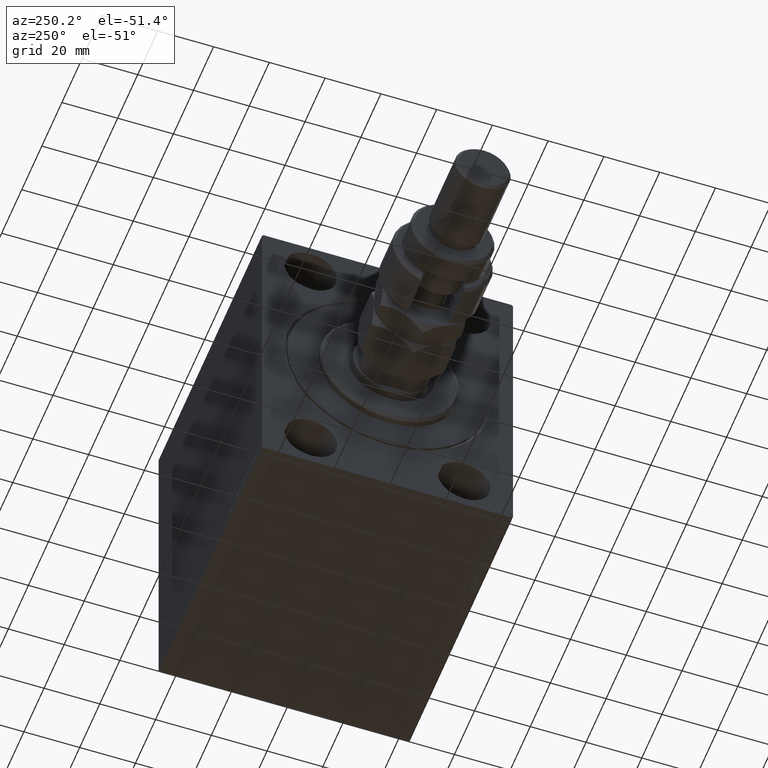
[diagram: clean part render]
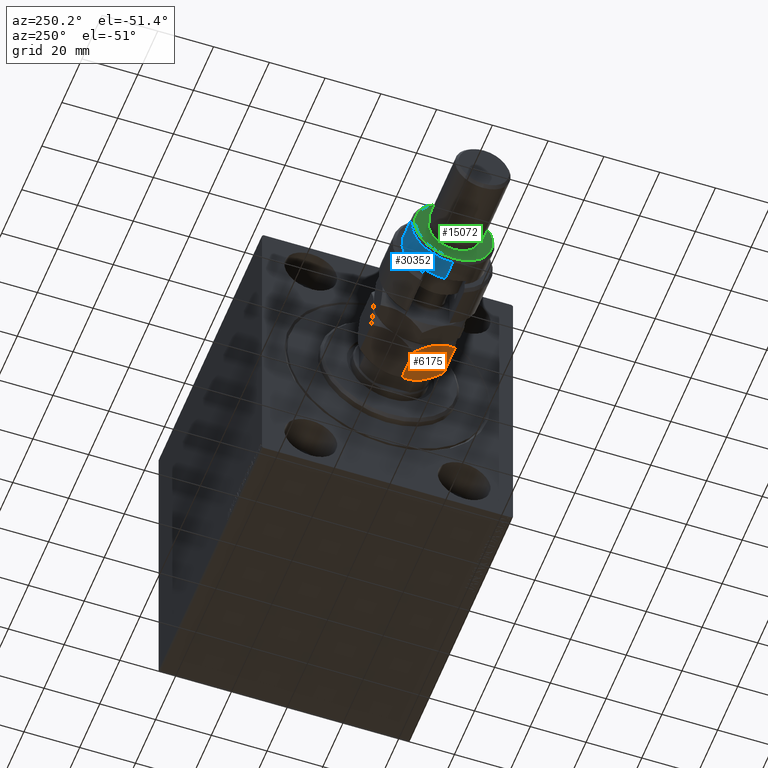
[diagram: same view with three faces highlighted in distinct colors, each labeled with its STEP entity id]
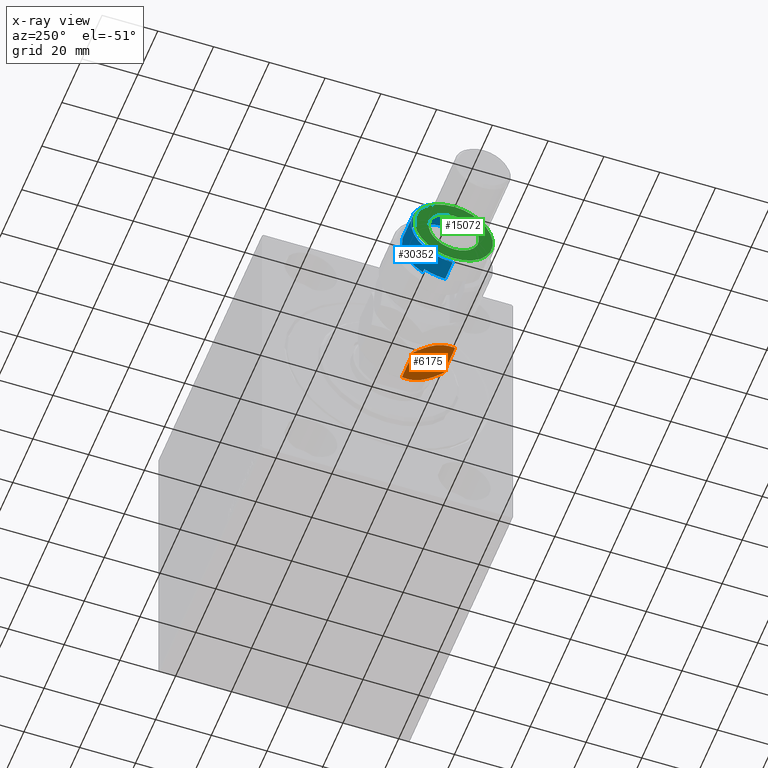
[diagram: x-ray of the same camera — body ghosted, the three highlighted faces saturated]
A machine part, auxiliary view with three faces highlighted in distinct colors.
The next image is the same camera in x-ray (body ghosted, the three faces saturated) — at least one of them is partly hidden behind the body in this view.
Their STEP definitions:

[orange] entity #6175 — the highlighted planar face has unit normal (0, 0.5, 0.866).
#936 = CARTESIAN_POINT ( 'NONE',  ( -2.383929548160354628, -15.94414570932928576, 14.93952096862912526 ) ) ;
#1970 = CARTESIAN_POINT ( 'NONE',  ( -14.99999999999999645, -8.660254037844389075, 2.320508075688762606 ) ) ;
#2292 = CARTESIAN_POINT ( 'NONE',  ( -14.99999999999999645, -8.660254037844389075, 2.320508075688762606 ) ) ;
#3951 = ORIENTED_EDGE ( 'NONE', *, *, #15473, .F. ) ;
#4167 = AXIS2_PLACEMENT_3D ( 'NONE', #21408, #33797, #12359 ) ;
#4850 = CARTESIAN_POINT ( 'NONE',  ( -3.416099238086855886E-15, -17.32050807568877104, 13.67949192431124317 ) ) ;
#5490 = CARTESIAN_POINT ( 'NONE',  ( -14.99999999999999645, -8.660254037844389075, 13.67949192431124139 ) ) ;
#6175 = ADVANCED_FACE ( 'NONE', ( #12126 ), #26495, .F. ) ;
#6575 = LINE ( 'NONE', #23762, #32902 ) ;
#7499 = B_SPLINE_CURVE_WITH_KNOTS ( 'NONE', 3,
 ( #26156, #36768, #33222, #936, #41038, #11785 ),
 .UNSPECIFIED., .F., .F.,
 ( 4, 2, 4 ),
 ( 0.008977392552884447263, 0.01343452311421656359, 0.01789165367554867991 ),
 .UNSPECIFIED. ) ;
#8515 = VERTEX_POINT ( 'NONE', #46137 ) ;
#8827 = EDGE_CURVE ( 'NONE', #45912, #42480, #9542, .T. ) ;
#8900 = CARTESIAN_POINT ( 'NONE',  ( -4.247772349543487813, -14.86805556622358893, 0.4475714085130264031 ) ) ;
#9217 = ORIENTED_EDGE ( 'NONE', *, *, #8827, .F. ) ;
#9278 = CARTESIAN_POINT ( 'NONE',  ( -8.804550678576912759, -12.23719837131869248, -4.878909776184767981E-16 ) ) ;
#9353 = CARTESIAN_POINT ( 'NONE',  ( -2.378834511187505996, -15.94708733029708725, 1.064486067744005560 ) ) ;
#9512 = CARTESIAN_POINT ( 'NONE',  ( -13.82525345580783060, -9.338494271363318333, 1.642267842169780279 ) ) ;
#9542 = B_SPLINE_CURVE_WITH_KNOTS ( 'NONE', 3,
 ( #38038, #9278, #12814, #34963, #9512, #1970 ),
 .UNSPECIFIED., .F., .F.,
 ( 4, 2, 4 ),
 ( 0.008977392552884445528, 0.01343452311421656012, 0.01789165367554867297 ),
 .UNSPECIFIED. ) ;
#10558 = CARTESIAN_POINT ( 'NONE',  ( -3.035766082959412415E-15, -17.32050807568877104, 16.00000000000000000 ) ) ;
#10852 = EDGE_CURVE ( 'NONE', #38655, #42480, #6575, .T. ) ;
#11785 = CARTESIAN_POINT ( 'NONE',  ( -3.416099238086855886E-15, -17.32050807568877104, 13.67949192431124317 ) ) ;
#11899 = CARTESIAN_POINT ( 'NONE',  ( -14.99999999999999645, -8.660254037844389075, 13.67949192431124139 ) ) ;
#12126 = FACE_OUTER_BOUND ( 'NONE', #33117, .T. ) ;
#12335 = CARTESIAN_POINT ( 'NONE',  ( -7.500000000000001776, -12.99038105676658361, 16.00000000000000000 ) ) ;
#12359 = DIRECTION ( 'NONE',  ( -0.8660254037844385966, 0.4999999999999999445, 0.000000000000000000 ) ) ;
#12814 = CARTESIAN_POINT ( 'NONE',  ( -10.08691881950258740, -11.49682277995505331, 0.2303299219392165864 ) ) ;
#15473 = EDGE_CURVE ( 'NONE', #38655, #8515, #45447, .T. ) ;
#15957 = CARTESIAN_POINT ( 'NONE',  ( -6.176419610670697224, -13.75455055083996214, 0.05953537397470286957 ) ) ;
#17048 = ORIENTED_EDGE ( 'NONE', *, *, #23490, .F. ) ;
#17108 = CARTESIAN_POINT ( 'NONE',  ( -7.500000000000000000, -12.99038105676658006, 0.000000000000000000 ) ) ;
#18106 = ORIENTED_EDGE ( 'NONE', *, *, #39361, .F. ) ;
#20219 = DIRECTION ( 'NONE',  ( -0.000000000000000000, -0.000000000000000000, -1.000000000000000000 ) ) ;
#21370 = DIRECTION ( 'NONE',  ( -0.000000000000000000, -0.000000000000000000, -1.000000000000000000 ) ) ;
#21408 = CARTESIAN_POINT ( 'NONE',  ( -14.99999999999999645, -8.660254037844389075, 16.00000000000000000 ) ) ;
#23490 = EDGE_CURVE ( 'NONE', #32672, #33825, #28443, .T. ) ;
#23491 = CARTESIAN_POINT ( 'NONE',  ( -6.843123817691746602, -13.36962869744650284, -3.760826285809093999E-16 ) ) ;
#23724 = CARTESIAN_POINT ( 'NONE',  ( -4.881674457977378090, -14.50207201327941320, 0.2838026619462943323 ) ) ;
#23762 = CARTESIAN_POINT ( 'NONE',  ( -14.99999999999999645, -8.660254037844389075, 16.00000000000000000 ) ) ;
#24765 = B_SPLINE_CURVE_WITH_KNOTS ( 'NONE', 3,
 ( #41446, #34811, #9353, #8900, #23724, #15957, #23491, #30335 ),
 .UNSPECIFIED., .F., .F.,
 ( 4, 2, 2, 4 ),
 ( 2.544309033648719118E-07, 0.004488823491893905240, 0.006733108022389175384, 0.008977392552884445528 ),
 .UNSPECIFIED. ) ;
#26156 = CARTESIAN_POINT ( 'NONE',  ( -7.500000000000001776, -12.99038105676658361, 16.00000000000000000 ) ) ;
#26495 = PLANE ( 'NONE',  #4167 ) ;
#27398 = CARTESIAN_POINT ( 'NONE',  ( -8.156876182308250733, -12.61113341608665905, 16.00000000000000355 ) ) ;
#27638 = CARTESIAN_POINT ( 'NONE',  ( -13.82389157469335750, -9.339280553791368789, 14.35851844025821933 ) ) ;
#28294 = EDGE_CURVE ( 'NONE', #8515, #32672, #7499, .T. ) ;
#28344 = CARTESIAN_POINT ( 'NONE',  ( -2.796947266322166691E-15, -17.32050807568877104, 2.320508075688761718 ) ) ;
#28443 = LINE ( 'NONE', #10558, #31518 ) ;
#30335 = CARTESIAN_POINT ( 'NONE',  ( -7.500000000000000000, -12.99038105676658006, 0.000000000000000000 ) ) ;
#30937 = CARTESIAN_POINT ( 'NONE',  ( -10.11832554202262102, -11.47869010025374692, 15.71619733805371411 ) ) ;
#31518 = VECTOR ( 'NONE', #21370, 1000.000000000000000 ) ;
#32672 = VERTEX_POINT ( 'NONE', #4850 ) ;
#32902 = VECTOR ( 'NONE', #20219, 1000.000000000000000 ) ;
#33117 = EDGE_LOOP ( 'NONE', ( #18106, #17048, #44296, #3951, #35061, #9217 ) ) ;
#33222 = CARTESIAN_POINT ( 'NONE',  ( -4.913081180497412603, -14.48393933357810504, 15.76967007806078946 ) ) ;
#33797 = DIRECTION ( 'NONE',  ( 0.5000000000000000000, 0.8660254037844387076, -0.000000000000000000 ) ) ;
#33825 = VERTEX_POINT ( 'NONE', #28344 ) ;
#34811 = CARTESIAN_POINT ( 'NONE',  ( -1.176108425306644722, -16.64148155974179488, 1.641481559741788665 ) ) ;
#34963 = CARTESIAN_POINT ( 'NONE',  ( -12.61607045183964715, -10.03661640420386902, 1.060479031370877845 ) ) ;
#35061 = ORIENTED_EDGE ( 'NONE', *, *, #10852, .T. ) ;
#36768 = CARTESIAN_POINT ( 'NONE',  ( -6.195449321423087241, -13.74356374221446586, 16.00000000000001066 ) ) ;
#38038 = CARTESIAN_POINT ( 'NONE',  ( -7.500000000000000000, -12.99038105676658006, 0.000000000000000000 ) ) ;
#38502 = CARTESIAN_POINT ( 'NONE',  ( -8.823580389329300999, -12.22621156269320331, 15.94046462602529957 ) ) ;
#38655 = VERTEX_POINT ( 'NONE', #11899 ) ;
#39361 = EDGE_CURVE ( 'NONE', #33825, #45912, #24765, .T. ) ;
#41038 = CARTESIAN_POINT ( 'NONE',  ( -1.174746544192163844, -16.64226784216984711, 14.35773215783022572 ) ) ;
#41446 = CARTESIAN_POINT ( 'NONE',  ( -2.796947266322166691E-15, -17.32050807568877104, 2.320508075688761718 ) ) ;
#42057 = CARTESIAN_POINT ( 'NONE',  ( -10.75222765045651308, -11.11270654730956409, 15.55242859148697576 ) ) ;
#42480 = VERTEX_POINT ( 'NONE', #2292 ) ;
#44296 = ORIENTED_EDGE ( 'NONE', *, *, #28294, .F. ) ;
#45347 = CARTESIAN_POINT ( 'NONE',  ( -12.62116548881249223, -10.03367478323606221, 14.93551393225599533 ) ) ;
#45447 = B_SPLINE_CURVE_WITH_KNOTS ( 'NONE', 3,
 ( #5490, #27638, #45347, #42057, #30937, #38502, #27398, #12335 ),
 .UNSPECIFIED., .F., .F.,
 ( 4, 2, 2, 4 ),
 ( 2.544309033641602453E-07, 0.004488823491893906108, 0.006733108022389176252, 0.008977392552884447263 ),
 .UNSPECIFIED. ) ;
#45912 = VERTEX_POINT ( 'NONE', #17108 ) ;
#46137 = CARTESIAN_POINT ( 'NONE',  ( -7.500000000000001776, -12.99038105676658361, 16.00000000000000000 ) ) ;

[blue] entity #30352 — the highlighted cylindrical surface (partial cylindrical patch) has radius 15 mm, axis along (1, -0, -0).
#570 = VECTOR ( 'NONE', #14506, 1000.000000000000000 ) ;
#1092 = EDGE_CURVE ( 'NONE', #4465, #37922, #13204, .T. ) ;
#1184 = VERTEX_POINT ( 'NONE', #11866 ) ;
#3644 = CARTESIAN_POINT ( 'NONE',  ( 0.000000000000000000, 0.000000000000000000, 16.00000000000000000 ) ) ;
#4417 = VERTEX_POINT ( 'NONE', #5570 ) ;
#4465 = VERTEX_POINT ( 'NONE', #5807 ) ;
#5570 = CARTESIAN_POINT ( 'NONE',  ( -15.00000000000000000, 0.000000000000000000, 17.50000000000000000 ) ) ;
#5807 = CARTESIAN_POINT ( 'NONE',  ( 15.00000000000000000, 1.836970198721029589E-15, 16.00000000000000000 ) ) ;
#7664 = LINE ( 'NONE', #36194, #570 ) ;
#9753 = ORIENTED_EDGE ( 'NONE', *, *, #36142, .T. ) ;
#10205 = CARTESIAN_POINT ( 'NONE',  ( 0.000000000000000000, 0.000000000000000000, 17.50000000000000000 ) ) ;
#10319 = ORIENTED_EDGE ( 'NONE', *, *, #11315, .F. ) ;
#10736 = DIRECTION ( 'NONE',  ( 0.000000000000000000, 0.000000000000000000, 1.000000000000000000 ) ) ;
#11120 = DIRECTION ( 'NONE',  ( 0.000000000000000000, 0.000000000000000000, 1.000000000000000000 ) ) ;
#11315 = EDGE_CURVE ( 'NONE', #1184, #4417, #7664, .T. ) ;
#11866 = CARTESIAN_POINT ( 'NONE',  ( -15.00000000000000000, 0.000000000000000000, 24.99999999999997868 ) ) ;
#13204 = CIRCLE ( 'NONE', #25254, 15.00000000000000000 ) ;
#13643 = DIRECTION ( 'NONE',  ( -1.000000000000000000, 0.000000000000000000, 0.000000000000000000 ) ) ;
#14250 = EDGE_CURVE ( 'NONE', #4417, #44909, #43584, .T. ) ;
#14506 = DIRECTION ( 'NONE',  ( -0.000000000000000000, -0.000000000000000000, -1.000000000000000000 ) ) ;
#14934 = AXIS2_PLACEMENT_3D ( 'NONE', #10205, #16784, #31167 ) ;
#15890 = AXIS2_PLACEMENT_3D ( 'NONE', #45973, #17403, #13643 ) ;
#16784 = DIRECTION ( 'NONE',  ( 0.000000000000000000, 0.000000000000000000, -1.000000000000000000 ) ) ;
#17168 = FACE_OUTER_BOUND ( 'NONE', #21714, .T. ) ;
#17403 = DIRECTION ( 'NONE',  ( -0.000000000000000000, -0.000000000000000000, -1.000000000000000000 ) ) ;
#17634 = CYLINDRICAL_SURFACE ( 'NONE', #15890, 15.00000000000000000 ) ;
#18173 = LINE ( 'NONE', #43443, #20291 ) ;
#20291 = VECTOR ( 'NONE', #11120, 1000.000000000000000 ) ;
#21245 = AXIS2_PLACEMENT_3D ( 'NONE', #28227, #32688, #28932 ) ;
#21714 = EDGE_LOOP ( 'NONE', ( #40287, #9753, #25973, #24864, #37472, #10319 ) ) ;
#23465 = LINE ( 'NONE', #44951, #30994 ) ;
#24864 = ORIENTED_EDGE ( 'NONE', *, *, #26364, .T. ) ;
#24985 = CIRCLE ( 'NONE', #21245, 15.00000000000000000 ) ;
#25254 = AXIS2_PLACEMENT_3D ( 'NONE', #3644, #10736, #43054 ) ;
#25973 = ORIENTED_EDGE ( 'NONE', *, *, #1092, .T. ) ;
#26364 = EDGE_CURVE ( 'NONE', #37922, #44909, #18173, .T. ) ;
#28227 = CARTESIAN_POINT ( 'NONE',  ( 0.000000000000000000, 0.000000000000000000, 24.99999999999997868 ) ) ;
#28932 = DIRECTION ( 'NONE',  ( 1.000000000000000000, 0.000000000000000000, 0.000000000000000000 ) ) ;
#30352 = ADVANCED_FACE ( 'NONE', ( #17168 ), #17634, .T. ) ;
#30994 = VECTOR ( 'NONE', #37854, 1000.000000000000000 ) ;
#31167 = DIRECTION ( 'NONE',  ( -1.000000000000000000, 0.000000000000000000, 0.000000000000000000 ) ) ;
#32097 = CARTESIAN_POINT ( 'NONE',  ( 15.00000000000000000, 1.836970198721029589E-15, 24.99999999999997868 ) ) ;
#32688 = DIRECTION ( 'NONE',  ( 0.000000000000000000, 0.000000000000000000, -1.000000000000000000 ) ) ;
#33555 = CARTESIAN_POINT ( 'NONE',  ( -12.99038105676658006, 7.500000000000000000, 16.00000000000000000 ) ) ;
#35972 = EDGE_CURVE ( 'NONE', #1184, #42067, #24985, .T. ) ;
#36142 = EDGE_CURVE ( 'NONE', #42067, #4465, #23465, .T. ) ;
#36194 = CARTESIAN_POINT ( 'NONE',  ( -15.00000000000000000, 0.000000000000000000, 26.00000000000000355 ) ) ;
#37472 = ORIENTED_EDGE ( 'NONE', *, *, #14250, .F. ) ;
#37854 = DIRECTION ( 'NONE',  ( -0.000000000000000000, -0.000000000000000000, -1.000000000000000000 ) ) ;
#37922 = VERTEX_POINT ( 'NONE', #33555 ) ;
#40287 = ORIENTED_EDGE ( 'NONE', *, *, #35972, .T. ) ;
#42067 = VERTEX_POINT ( 'NONE', #32097 ) ;
#42116 = CARTESIAN_POINT ( 'NONE',  ( -12.99038105676658006, 7.500000000000000000, 17.50000000000000000 ) ) ;
#43054 = DIRECTION ( 'NONE',  ( 1.000000000000000000, 0.000000000000000000, 0.000000000000000000 ) ) ;
#43443 = CARTESIAN_POINT ( 'NONE',  ( -12.99038105676658006, 7.500000000000000000, 26.00000000000000355 ) ) ;
#43584 = CIRCLE ( 'NONE', #14934, 15.00000000000000000 ) ;
#44909 = VERTEX_POINT ( 'NONE', #42116 ) ;
#44951 = CARTESIAN_POINT ( 'NONE',  ( 15.00000000000000000, 1.836970198721029589E-15, 26.00000000000000355 ) ) ;
#45973 = CARTESIAN_POINT ( 'NONE',  ( 0.000000000000000000, 0.000000000000000000, 26.00000000000000355 ) ) ;

[green] entity #15072 — the highlighted planar face has unit normal (-1, 0, 0).
#549 = CARTESIAN_POINT ( 'NONE',  ( 13.99999999999997513, 1.775737858763660437E-15, 26.00000000000000355 ) ) ;
#780 = DIRECTION ( 'NONE',  ( 0.000000000000000000, 0.000000000000000000, 1.000000000000000000 ) ) ;
#1057 = CARTESIAN_POINT ( 'NONE',  ( 0.000000000000000000, 0.000000000000000000, 26.00000000000000355 ) ) ;
#1355 = CARTESIAN_POINT ( 'NONE',  ( 0.000000000000000000, 0.000000000000000000, 26.00000000000000355 ) ) ;
#1683 = EDGE_CURVE ( 'NONE', #46503, #13859, #7843, .T. ) ;
#3478 = DIRECTION ( 'NONE',  ( 0.000000000000000000, 0.000000000000000000, 1.000000000000000000 ) ) ;
#3934 = PLANE ( 'NONE',  #9730 ) ;
#4595 = EDGE_CURVE ( 'NONE', #42002, #29189, #33469, .T. ) ;
#6186 = ORIENTED_EDGE ( 'NONE', *, *, #6975, .F. ) ;
#6422 = CARTESIAN_POINT ( 'NONE',  ( -13.99999999999997513, 0.000000000000000000, 26.00000000000000355 ) ) ;
#6975 = EDGE_CURVE ( 'NONE', #13859, #46503, #16252, .T. ) ;
#7226 = AXIS2_PLACEMENT_3D ( 'NONE', #1355, #15724, #30103 ) ;
#7279 = ORIENTED_EDGE ( 'NONE', *, *, #1683, .F. ) ;
#7843 = CIRCLE ( 'NONE', #16853, 9.000000000000000000 ) ;
#9066 = DIRECTION ( 'NONE',  ( 1.000000000000000000, 0.000000000000000000, 0.000000000000000000 ) ) ;
#9730 = AXIS2_PLACEMENT_3D ( 'NONE', #17617, #3478, #13856 ) ;
#9844 = CARTESIAN_POINT ( 'NONE',  ( -9.000000000000000000, 0.000000000000000000, 26.00000000000000355 ) ) ;
#11832 = EDGE_LOOP ( 'NONE', ( #6186, #7279 ) ) ;
#12421 = AXIS2_PLACEMENT_3D ( 'NONE', #1057, #12601, #9066 ) ;
#12601 = DIRECTION ( 'NONE',  ( 0.000000000000000000, 0.000000000000000000, 1.000000000000000000 ) ) ;
#13212 = DIRECTION ( 'NONE',  ( 0.000000000000000000, 0.000000000000000000, 1.000000000000000000 ) ) ;
#13856 = DIRECTION ( 'NONE',  ( 1.000000000000000000, 0.000000000000000000, -0.000000000000000000 ) ) ;
#13859 = VERTEX_POINT ( 'NONE', #9844 ) ;
#15072 = ADVANCED_FACE ( 'NONE', ( #35544, #21150 ), #3934, .T. ) ;
#15334 = AXIS2_PLACEMENT_3D ( 'NONE', #33070, #780, #22451 ) ;
#15724 = DIRECTION ( 'NONE',  ( 0.000000000000000000, 0.000000000000000000, 1.000000000000000000 ) ) ;
#16252 = CIRCLE ( 'NONE', #7226, 9.000000000000000000 ) ;
#16853 = AXIS2_PLACEMENT_3D ( 'NONE', #45528, #13212, #27578 ) ;
#17617 = CARTESIAN_POINT ( 'NONE',  ( 0.000000000000000000, 0.000000000000000000, 26.00000000000000355 ) ) ;
#18781 = CARTESIAN_POINT ( 'NONE',  ( 9.000000000000000000, 1.102182119232617714E-15, 26.00000000000000355 ) ) ;
#21150 = FACE_BOUND ( 'NONE', #11832, .T. ) ;
#22451 = DIRECTION ( 'NONE',  ( 1.000000000000000000, 0.000000000000000000, 0.000000000000000000 ) ) ;
#27578 = DIRECTION ( 'NONE',  ( 1.000000000000000000, 0.000000000000000000, 0.000000000000000000 ) ) ;
#29189 = VERTEX_POINT ( 'NONE', #549 ) ;
#30103 = DIRECTION ( 'NONE',  ( 1.000000000000000000, 0.000000000000000000, 0.000000000000000000 ) ) ;
#33070 = CARTESIAN_POINT ( 'NONE',  ( 0.000000000000000000, 0.000000000000000000, 26.00000000000000355 ) ) ;
#33469 = CIRCLE ( 'NONE', #12421, 13.99999999999997513 ) ;
#35544 = FACE_OUTER_BOUND ( 'NONE', #45317, .T. ) ;
#38426 = ORIENTED_EDGE ( 'NONE', *, *, #4595, .T. ) ;
#41656 = ORIENTED_EDGE ( 'NONE', *, *, #41934, .T. ) ;
#41934 = EDGE_CURVE ( 'NONE', #29189, #42002, #43982, .T. ) ;
#42002 = VERTEX_POINT ( 'NONE', #6422 ) ;
#43982 = CIRCLE ( 'NONE', #15334, 13.99999999999997513 ) ;
#45317 = EDGE_LOOP ( 'NONE', ( #38426, #41656 ) ) ;
#45528 = CARTESIAN_POINT ( 'NONE',  ( 0.000000000000000000, 0.000000000000000000, 26.00000000000000355 ) ) ;
#46503 = VERTEX_POINT ( 'NONE', #18781 ) ;